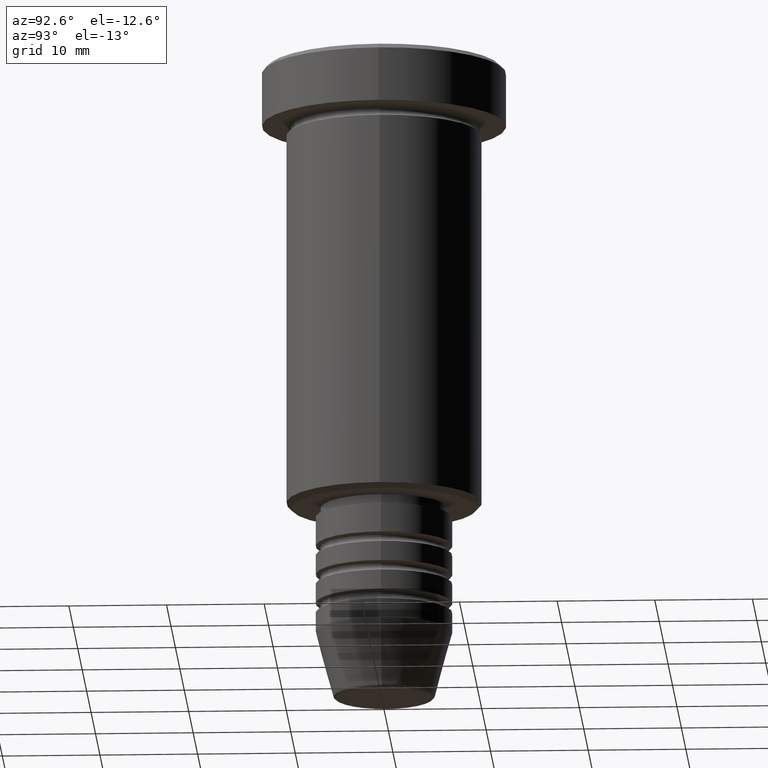
[diagram: clean part render]
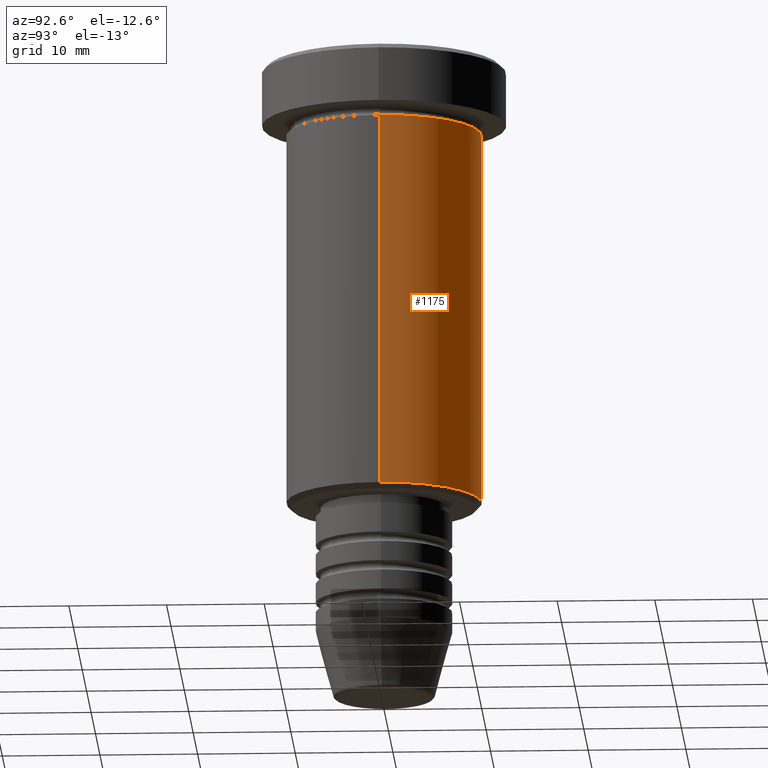
[diagram: same view with one face highlighted and labeled with its STEP entity id]
A machine part, auxiliary view. The second image highlights one B-rep face of the part: STEP entity #1175.
In plain terms, the highlighted cylindrical surface (partial cylindrical patch) has radius 10 mm, axis along (-0, -0, 1).
Its self-contained STEP definition (entity closure, byte-faithful):
#22 = CARTESIAN_POINT ( 'NONE',  ( -10.00000000000000000, 1.224646799147353256E-15, -45.50000000000001421 ) ) ;
#28 = FACE_OUTER_BOUND ( 'NONE', #184, .T. ) ;
#35 = VERTEX_POINT ( 'NONE', #22 ) ;
#52 = VERTEX_POINT ( 'NONE', #551 ) ;
#71 = DIRECTION ( 'NONE',  ( -1.000000000000000000, 0.000000000000000000, 0.000000000000000000 ) ) ;
#139 = DIRECTION ( 'NONE',  ( -0.000000000000000000, -0.000000000000000000, 1.000000000000000000 ) ) ;
#143 = CIRCLE ( 'NONE', #817, 10.00000000000000000 ) ;
#156 = EDGE_CURVE ( 'NONE', #306, #1067, #778, .T. ) ;
#184 = EDGE_LOOP ( 'NONE', ( #1051, #755, #313, #593 ) ) ;
#195 = AXIS2_PLACEMENT_3D ( 'NONE', #750, #282, #651 ) ;
#225 = CARTESIAN_POINT ( 'NONE',  ( -10.00000000000000000, 1.224646799147353256E-15, 0.000000000000000000 ) ) ;
#238 = VECTOR ( 'NONE', #955, 1000.000000000000000 ) ;
#282 = DIRECTION ( 'NONE',  ( -0.000000000000000000, -0.000000000000000000, 1.000000000000000000 ) ) ;
#304 = CYLINDRICAL_SURFACE ( 'NONE', #814, 10.00000000000000000 ) ;
#306 = VERTEX_POINT ( 'NONE', #1161 ) ;
#313 = ORIENTED_EDGE ( 'NONE', *, *, #156, .F. ) ;
#362 = EDGE_CURVE ( 'NONE', #52, #35, #143, .T. ) ;
#551 = CARTESIAN_POINT ( 'NONE',  ( 10.00000000000000000, 0.000000000000000000, -45.50000000000001421 ) ) ;
#593 = ORIENTED_EDGE ( 'NONE', *, *, #627, .F. ) ;
#597 = EDGE_CURVE ( 'NONE', #35, #1067, #774, .T. ) ;
#627 = EDGE_CURVE ( 'NONE', #52, #306, #1053, .T. ) ;
#651 = DIRECTION ( 'NONE',  ( 1.000000000000000000, 0.000000000000000000, 0.000000000000000000 ) ) ;
#672 = CARTESIAN_POINT ( 'NONE',  ( 0.000000000000000000, 0.000000000000000000, 0.000000000000000000 ) ) ;
#716 = DIRECTION ( 'NONE',  ( -0.000000000000000000, -0.000000000000000000, 1.000000000000000000 ) ) ;
#739 = VECTOR ( 'NONE', #1046, 1000.000000000000000 ) ;
#750 = CARTESIAN_POINT ( 'NONE',  ( 0.000000000000000000, 0.000000000000000000, -6.999999999999996447 ) ) ;
#755 = ORIENTED_EDGE ( 'NONE', *, *, #597, .T. ) ;
#774 = LINE ( 'NONE', #225, #238 ) ;
#778 = CIRCLE ( 'NONE', #195, 10.00000000000000000 ) ;
#814 = AXIS2_PLACEMENT_3D ( 'NONE', #672, #139, #1033 ) ;
#817 = AXIS2_PLACEMENT_3D ( 'NONE', #893, #716, #71 ) ;
#893 = CARTESIAN_POINT ( 'NONE',  ( 0.000000000000000000, 0.000000000000000000, -45.50000000000001421 ) ) ;
#955 = DIRECTION ( 'NONE',  ( -0.000000000000000000, -0.000000000000000000, 1.000000000000000000 ) ) ;
#1033 = DIRECTION ( 'NONE',  ( 1.000000000000000000, 0.000000000000000000, 0.000000000000000000 ) ) ;
#1036 = CARTESIAN_POINT ( 'NONE',  ( 10.00000000000000000, 0.000000000000000000, 0.000000000000000000 ) ) ;
#1046 = DIRECTION ( 'NONE',  ( -0.000000000000000000, -0.000000000000000000, 1.000000000000000000 ) ) ;
#1051 = ORIENTED_EDGE ( 'NONE', *, *, #362, .T. ) ;
#1053 = LINE ( 'NONE', #1036, #739 ) ;
#1067 = VERTEX_POINT ( 'NONE', #1106 ) ;
#1106 = CARTESIAN_POINT ( 'NONE',  ( -10.00000000000000000, 1.224646799147353256E-15, -6.999999999999996447 ) ) ;
#1161 = CARTESIAN_POINT ( 'NONE',  ( 10.00000000000000000, 0.000000000000000000, -6.999999999999996447 ) ) ;
#1175 = ADVANCED_FACE ( 'NONE', ( #28 ), #304, .T. ) ;